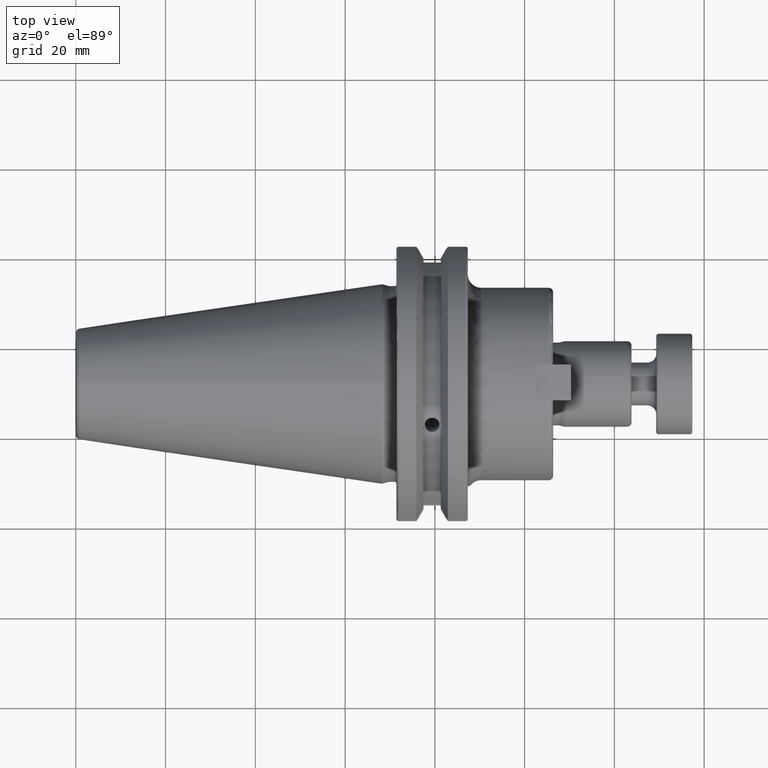
[diagram: clean part render]
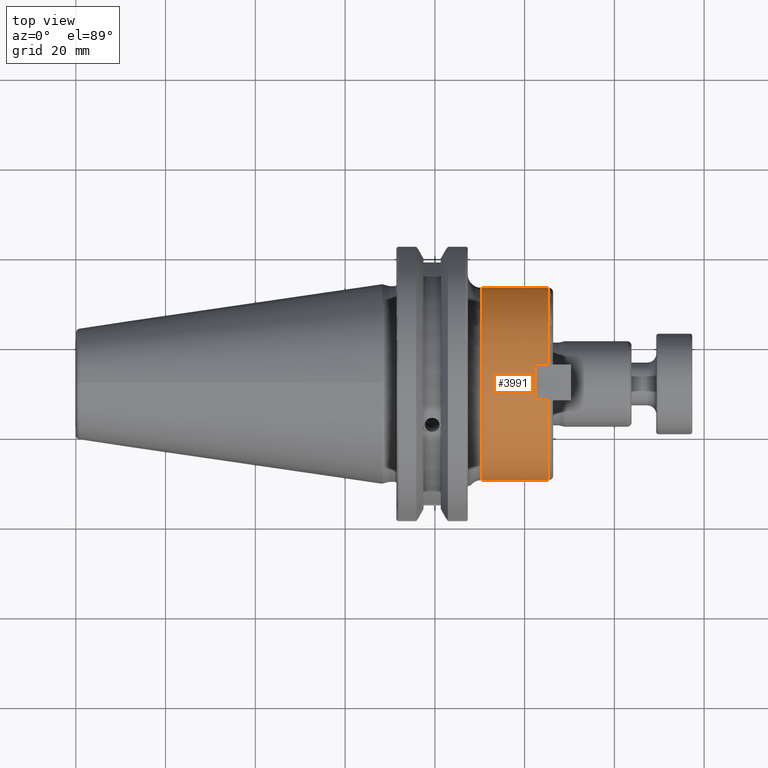
[diagram: same view with one face highlighted and labeled with its STEP entity id]
A machine part, top view. The second image highlights one B-rep face of the part: STEP entity #3991.
In plain terms, the highlighted cylindrical surface (partial cylindrical patch) has radius 21.4376 mm, axis along (1, 0, 0).
Its self-contained STEP definition (entity closure, byte-faithful):
#754=DIRECTION('',(-1.E0,0.E0,6.161682623178E-12));
#755=VECTOR('',#754,5.920157480315E-1);
#756=CARTESIAN_POINT('',(1.461E0,8.44E-1,-3.484776609719E-13));
#757=LINE('',#756,#755);
#763=DIRECTION('',(-9.999999999903E-1,1.359780741635E-11,-4.402907073392E-6));
#764=VECTOR('',#763,5.920157480372E-1);
#765=CARTESIAN_POINT('',(1.461E0,-8.44E-1,3.485489729313E-13));
#766=LINE('',#765,#764);
#1135=CARTESIAN_POINT('',(1.461E0,0.E0,0.E0));
#1136=DIRECTION('',(-1.E0,0.E0,0.E0));
#1137=DIRECTION('',(0.E0,-1.E0,0.E0));
#1138=AXIS2_PLACEMENT_3D('',#1135,#1136,#1137);
#1140=CARTESIAN_POINT('',(8.689842519685E-1,0.E0,0.E0));
#1141=DIRECTION('',(1.E0,0.E0,0.E0));
#1142=DIRECTION('',(0.E0,1.E0,0.E0));
#1143=AXIS2_PLACEMENT_3D('',#1140,#1141,#1142);
#1145=CARTESIAN_POINT('',(1.461E0,0.E0,0.E0));
#1146=DIRECTION('',(-1.E0,0.E0,0.E0));
#1147=DIRECTION('',(0.E0,1.836492890995E-1,9.829918303899E-1));
#1148=AXIS2_PLACEMENT_3D('',#1145,#1146,#1147);
#1150=DIRECTION('',(1.E0,0.E0,0.E0));
#1151=VECTOR('',#1150,1.172992125984E-1);
#1152=CARTESIAN_POINT('',(1.343700787402E0,1.55E-1,8.296451048491E-1));
#1153=LINE('',#1152,#1151);
#1154=CARTESIAN_POINT('',(1.343700787402E0,0.E0,0.E0));
#1155=DIRECTION('',(1.E0,0.E0,0.E0));
#1156=DIRECTION('',(0.E0,1.836492890995E-1,9.829918303899E-1));
#1157=AXIS2_PLACEMENT_3D('',#1154,#1155,#1156);
#1159=DIRECTION('',(1.E0,0.E0,0.E0));
#1160=VECTOR('',#1159,1.172992125984E-1);
#1161=CARTESIAN_POINT('',(1.343700787402E0,-1.55E-1,8.296451048491E-1));
#1162=LINE('',#1161,#1160);
#2561=CARTESIAN_POINT('',(8.689842519685E-1,-8.44E-1,0.E0));
#2562=CARTESIAN_POINT('',(8.689842519685E-1,8.44E-1,0.E0));
#2563=VERTEX_POINT('',#2561);
#2564=VERTEX_POINT('',#2562);
#2579=CARTESIAN_POINT('',(1.461E0,-8.44E-1,0.E0));
#2580=CARTESIAN_POINT('',(1.461E0,-1.55E-1,8.296451048491E-1));
#2581=VERTEX_POINT('',#2579);
#2582=VERTEX_POINT('',#2580);
#2583=CARTESIAN_POINT('',(1.461E0,1.55E-1,8.296451048491E-1));
#2584=CARTESIAN_POINT('',(1.461E0,8.44E-1,0.E0));
#2585=VERTEX_POINT('',#2583);
#2586=VERTEX_POINT('',#2584);
#2613=CARTESIAN_POINT('',(1.343700787402E0,1.55E-1,8.296451048491E-1));
#2614=CARTESIAN_POINT('',(1.343700787402E0,-1.55E-1,8.296451048491E-1));
#2615=VERTEX_POINT('',#2613);
#2616=VERTEX_POINT('',#2614);
#3972=CARTESIAN_POINT('',(0.E0,0.E0,0.E0));
#3973=DIRECTION('',(1.E0,0.E0,0.E0));
#3974=DIRECTION('',(0.E0,-1.E0,0.E0));
#3975=AXIS2_PLACEMENT_3D('',#3972,#3973,#3974);
#3976=CYLINDRICAL_SURFACE('',#3975,8.44E-1);
#3977=ORIENTED_EDGE('',*,*,#3418,.F.);
#3978=ORIENTED_EDGE('',*,*,#3403,.T.);
#3980=ORIENTED_EDGE('',*,*,#3979,.F.);
#3981=ORIENTED_EDGE('',*,*,#3400,.F.);
#3983=ORIENTED_EDGE('',*,*,#3982,.F.);
#3985=ORIENTED_EDGE('',*,*,#3984,.F.);
#3987=ORIENTED_EDGE('',*,*,#3986,.T.);
#3988=ORIENTED_EDGE('',*,*,#3962,.T.);
#3989=EDGE_LOOP('',(#3977,#3978,#3980,#3981,#3983,#3985,#3987,#3988));
#3990=FACE_OUTER_BOUND('',#3989,.F.);
#3991=ADVANCED_FACE('',(#3990),#3976,.T.);
#1139=CIRCLE('',#1138,8.44E-1);
#1144=CIRCLE('',#1143,8.44E-1);
#1149=CIRCLE('',#1148,8.44E-1);
#1158=CIRCLE('',#1157,8.44E-1);
#3400=EDGE_CURVE('',#2586,#2564,#757,.T.);
#3403=EDGE_CURVE('',#2581,#2563,#766,.T.);
#3418=EDGE_CURVE('',#2581,#2582,#1139,.T.);
#3962=EDGE_CURVE('',#2616,#2582,#1162,.T.);
#3979=EDGE_CURVE('',#2564,#2563,#1144,.T.);
#3982=EDGE_CURVE('',#2585,#2586,#1149,.T.);
#3984=EDGE_CURVE('',#2615,#2585,#1153,.T.);
#3986=EDGE_CURVE('',#2615,#2616,#1158,.T.);